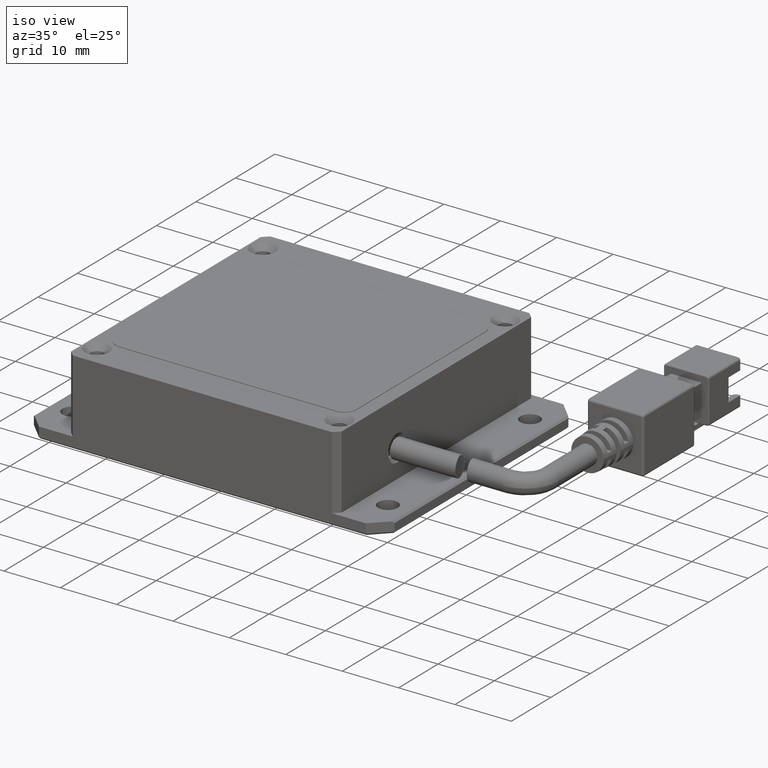
[diagram: clean part render]
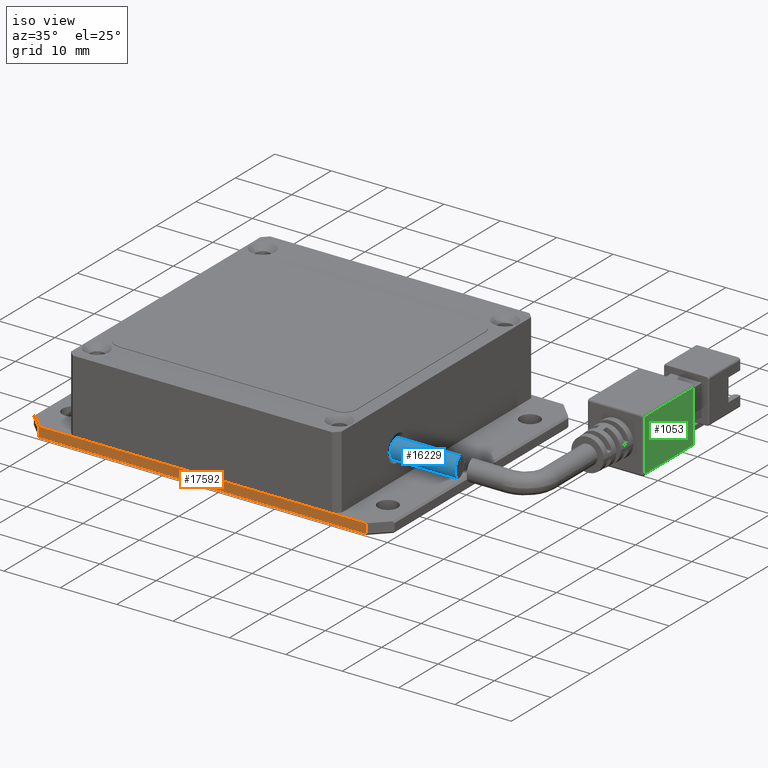
[diagram: same view with three faces highlighted in distinct colors, each labeled with its STEP entity id]
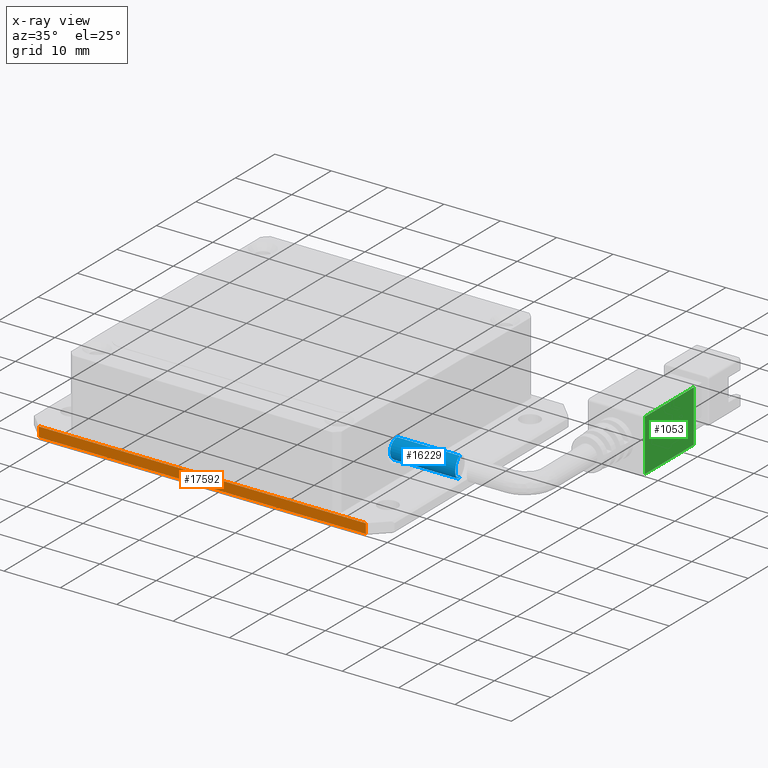
[diagram: x-ray of the same camera — body ghosted, the three highlighted faces saturated]
A machine part, iso view with three faces highlighted in distinct colors.
The next image is the same camera in x-ray (body ghosted, the three faces saturated) — at least one of them is partly hidden behind the body in this view.
Their STEP definitions:

[orange] entity #17592 — the highlighted planar face has unit normal (0, 1, 0).
#899 = CARTESIAN_POINT ( 'NONE',  ( 31.09316533027871900, -22.70904925544097000, -2.000000000016308300 ) ) ;
#1716 = VERTEX_POINT ( 'NONE', #15569 ) ;
#1923 = ORIENTED_EDGE ( 'NONE', *, *, #12071, .F. ) ;
#2121 = DIRECTION ( 'NONE',  ( 1.000000000000000000, 0.0000000000000000000, 0.0000000000000000000 ) ) ;
#2465 = DIRECTION ( 'NONE',  ( 0.0000000000000000000, 0.0000000000000000000, -1.000000000000000000 ) ) ;
#4229 = VECTOR ( 'NONE', #15873, 1000.000000000000000 ) ;
#6106 = AXIS2_PLACEMENT_3D ( 'NONE', #899, #11967, #2465 ) ;
#7556 = VECTOR ( 'NONE', #17646, 1000.000000000000000 ) ;
#8067 = EDGE_CURVE ( 'NONE', #1716, #10074, #11140, .T. ) ;
#8139 = LINE ( 'NONE', #14999, #16552 ) ;
#8174 = EDGE_CURVE ( 'NONE', #10074, #8392, #8139, .T. ) ;
#8392 = VERTEX_POINT ( 'NONE', #9277 ) ;
#8426 = CARTESIAN_POINT ( 'NONE',  ( 31.09316533027871900, -22.70904925544097000, -1.630813539765796300E-011 ) ) ;
#8479 = CARTESIAN_POINT ( 'NONE',  ( -29.90683466972126300, -22.70904925544097000, -1.700000000016290900 ) ) ;
#8928 = LINE ( 'NONE', #9538, #4229 ) ;
#9277 = CARTESIAN_POINT ( 'NONE',  ( 28.09316533027870500, -22.70904925544097700, -1.700000000016285600 ) ) ;
#9538 = CARTESIAN_POINT ( 'NONE',  ( -29.90683466972125600, -22.70904925544097000, -2.000000000016308300 ) ) ;
#10074 = VERTEX_POINT ( 'NONE', #20197 ) ;
#11140 = LINE ( 'NONE', #8426, #15333 ) ;
#11967 = DIRECTION ( 'NONE',  ( 0.0000000000000000000, 1.000000000000000000, 0.0000000000000000000 ) ) ;
#12071 = EDGE_CURVE ( 'NONE', #16082, #1716, #8928, .T. ) ;
#13681 = ORIENTED_EDGE ( 'NONE', *, *, #8174, .F. ) ;
#14231 = ORIENTED_EDGE ( 'NONE', *, *, #8067, .F. ) ;
#14298 = EDGE_CURVE ( 'NONE', #8392, #16082, #15471, .T. ) ;
#14999 = CARTESIAN_POINT ( 'NONE',  ( 28.09316533027870500, -22.70904925544097000, -2.000000000016308300 ) ) ;
#15031 = EDGE_LOOP ( 'NONE', ( #17705, #13681, #14231, #1923 ) ) ;
#15071 = PLANE ( 'NONE',  #6106 ) ;
#15333 = VECTOR ( 'NONE', #2121, 1000.000000000000000 ) ;
#15471 = LINE ( 'NONE', #16053, #7556 ) ;
#15569 = CARTESIAN_POINT ( 'NONE',  ( -29.90683466972125600, -22.70904925544097000, -1.630661751461648400E-011 ) ) ;
#15873 = DIRECTION ( 'NONE',  ( -0.0000000000000000000, -0.0000000000000000000, 1.000000000000000000 ) ) ;
#16053 = CARTESIAN_POINT ( 'NONE',  ( 31.09316533027871900, -22.70904925544097000, -1.700000000016287600 ) ) ;
#16082 = VERTEX_POINT ( 'NONE', #8479 ) ;
#16552 = VECTOR ( 'NONE', #18163, 1000.000000000000000 ) ;
#17592 = ADVANCED_FACE ( 'NONE', ( #20347 ), #15071, .F. ) ;
#17646 = DIRECTION ( 'NONE',  ( -1.000000000000000000, 0.0000000000000000000, 0.0000000000000000000 ) ) ;
#17705 = ORIENTED_EDGE ( 'NONE', *, *, #14298, .F. ) ;
#18163 = DIRECTION ( 'NONE',  ( 0.0000000000000000000, 0.0000000000000000000, -1.000000000000000000 ) ) ;
#20197 = CARTESIAN_POINT ( 'NONE',  ( 28.09316533027870800, -22.70904925544097000, -1.630813539765796300E-011 ) ) ;
#20347 = FACE_OUTER_BOUND ( 'NONE', #15031, .T. ) ;

[blue] entity #16229 — the highlighted cylindrical surface (edge-blend (fillet) strip) has radius 1.75 mm, axis along (-1, -0, 0).
#519 = CARTESIAN_POINT ( 'NONE',  ( 43.09316533027873700, -7.709049255440968200, 6.749999999983692200 ) ) ;
#727 = CARTESIAN_POINT ( 'NONE',  ( 23.09316533027874000, -7.709049255440968200, 6.749999999983692200 ) ) ;
#776 = CARTESIAN_POINT ( 'NONE',  ( 34.42856060406452900, -8.475306284021415900, 3.422582838820881900 ) ) ;
#780 = ORIENTED_EDGE ( 'NONE', *, *, #6441, .T. ) ;
#842 = CARTESIAN_POINT ( 'NONE',  ( 34.64020736969350600, -9.367897425893252400, 5.569322719982777900 ) ) ;
#1141 = CARTESIAN_POINT ( 'NONE',  ( 23.09316533027874000, -7.709049255440968200, 3.249999999983691700 ) ) ;
#2204 = AXIS2_PLACEMENT_3D ( 'NONE', #19900, #10432, #16792 ) ;
#2224 = AXIS2_PLACEMENT_3D ( 'NONE', #15554, #6063, #17132 ) ;
#2269 = CARTESIAN_POINT ( 'NONE',  ( 34.23941991828349500, -7.709049255440967300, 3.249999999983691700 ) ) ;
#2324 = VERTEX_POINT ( 'NONE', #10290 ) ;
#2344 = CARTESIAN_POINT ( 'NONE',  ( 34.49970302478727300, -8.764795848950356600, 3.599728623663661900 ) ) ;
#2421 = CARTESIAN_POINT ( 'NONE',  ( 34.60769107911598000, -9.222475451182695800, 5.886129147123134500 ) ) ;
#2954 = DIRECTION ( 'NONE',  ( -1.000000000000000000, -3.081487911019577400E-033, 2.465190328815661900E-031 ) ) ;
#3961 = CARTESIAN_POINT ( 'NONE',  ( 34.56040030083728700, -9.018198552341244700, 3.833079704190962100 ) ) ;
#3970 = EDGE_CURVE ( 'NONE', #2324, #18210, #16618, .T. ) ;
#4027 = CARTESIAN_POINT ( 'NONE',  ( 34.56093870887545400, -9.020474812607666600, 6.164484419326620400 ) ) ;
#5548 = CARTESIAN_POINT ( 'NONE',  ( 34.60736566569221400, -9.221039826487615400, 4.111368324109072600 ) ) ;
#5622 = CARTESIAN_POINT ( 'NONE',  ( 34.50027293188721700, -8.767141242688218500, 6.398500294470815100 ) ) ;
#6063 = DIRECTION ( 'NONE',  ( 1.000000000000000000, 3.081487911019577400E-033, -2.465190328815661900E-031 ) ) ;
#6090 = VECTOR ( 'NONE', #11598, 1000.000000000000000 ) ;
#6191 = CARTESIAN_POINT ( 'NONE',  ( 34.23941991828349500, -7.709049255440968200, 6.749999999983692200 ) ) ;
#6441 = EDGE_CURVE ( 'NONE', #6817, #18210, #17342, .T. ) ;
#6817 = VERTEX_POINT ( 'NONE', #727 ) ;
#7162 = CARTESIAN_POINT ( 'NONE',  ( 34.64986748201158000, -9.411282725181825600, 4.533076718571429400 ) ) ;
#7229 = CARTESIAN_POINT ( 'NONE',  ( 34.42873214433576800, -8.475998781282113400, 6.577068706638403500 ) ) ;
#7392 = VERTEX_POINT ( 'NONE', #6191 ) ;
#8651 = CARTESIAN_POINT ( 'NONE',  ( 34.29449603690850500, -7.935041597999716400, 3.261020609549650100 ) ) ;
#8712 = CARTESIAN_POINT ( 'NONE',  ( 34.66003263948368800, -9.459177063560549200, 5.113738040289639700 ) ) ;
#8787 = CARTESIAN_POINT ( 'NONE',  ( 34.29447871569624300, -7.936980781243422100, 6.749999999983696600 ) ) ;
#8880 = ORIENTED_EDGE ( 'NONE', *, *, #3970, .F. ) ;
#9444 = FACE_OUTER_BOUND ( 'NONE', #17433, .T. ) ;
#10245 = CARTESIAN_POINT ( 'NONE',  ( 34.37633946853516400, -8.265026321970314200, 3.336784970087286700 ) ) ;
#10290 = CARTESIAN_POINT ( 'NONE',  ( 34.23941991828349500, -7.709049255440967300, 3.249999999983691700 ) ) ;
#10320 = CARTESIAN_POINT ( 'NONE',  ( 34.64760298720358400, -9.401784739550331300, 5.458970932065691200 ) ) ;
#10415 = B_SPLINE_CURVE_WITH_KNOTS ( 'NONE', 3,
 ( #2269, #16538, #8651, #19728, #10245, #776, #11847, #2344, #13421, #3961, #15016, #5548, #16607, #7162, #18185, #8712, #19797, #10320, #842, #11926, #2421, #13494, #4027, #15087, #5622, #16672, #7229, #18253, #8787, #19859 ),
 .UNSPECIFIED., .F., .F.,
 ( 4, 2, 2, 2, 2, 2, 2, 2, 2, 2, 2, 2, 2, 2, 4 ),
 ( 1.728500114022708000E-014, 0.0003467692703522315100, 0.0006935385406871780300, 0.001040307811022124500, 0.001387077081357071100, 0.001733846351692017800, 0.002080615622026963900, 0.002774154162696860800, 0.003120923433031809500, 0.003467692703366757300, 0.003814461973701706000, 0.004161231244036654200, 0.004508000514371602500, 0.004854769784706550700, 0.005548308325376451500 ),
 .UNSPECIFIED. ) ;
#10432 = DIRECTION ( 'NONE',  ( -1.000000000000000000, -3.081487911019577400E-033, 2.465190328815661900E-031 ) ) ;
#11598 = DIRECTION ( 'NONE',  ( -1.000000000000000000, -3.081487911019577400E-033, 2.465190328815661900E-031 ) ) ;
#11847 = CARTESIAN_POINT ( 'NONE',  ( 34.45328980764789200, -8.575240878343995700, 3.475181037135812300 ) ) ;
#11926 = CARTESIAN_POINT ( 'NONE',  ( 34.62029946968888100, -9.278431874635691300, 5.782907278458969500 ) ) ;
#11939 = VECTOR ( 'NONE', #2954, 1000.000000000000000 ) ;
#12422 = CARTESIAN_POINT ( 'NONE',  ( 43.09316533027873700, -7.709049255440968200, 3.249999999983692200 ) ) ;
#13415 = EDGE_CURVE ( 'NONE', #7392, #6817, #18194, .T. ) ;
#13421 = CARTESIAN_POINT ( 'NONE',  ( 34.52157531494713500, -8.855222336051255600, 3.672648453635925800 ) ) ;
#13434 = ORIENTED_EDGE ( 'NONE', *, *, #13415, .T. ) ;
#13494 = CARTESIAN_POINT ( 'NONE',  ( 34.57806024271008700, -9.093718713517471700, 6.076277941427007600 ) ) ;
#13977 = ORIENTED_EDGE ( 'NONE', *, *, #18604, .T. ) ;
#15016 = CARTESIAN_POINT ( 'NONE',  ( 34.57753194988943300, -9.091445301735527500, 3.920758176530361200 ) ) ;
#15087 = CARTESIAN_POINT ( 'NONE',  ( 34.52174498554524000, -8.855918677427176500, 6.326857748122291600 ) ) ;
#15554 = CARTESIAN_POINT ( 'NONE',  ( 23.09316533027874000, -7.709049255440968200, 4.999999999983692200 ) ) ;
#15850 = CYLINDRICAL_SURFACE ( 'NONE', #2204, 1.749999999999999800 ) ;
#16229 = ADVANCED_FACE ( 'NONE', ( #9444 ), #15850, .T. ) ;
#16538 = CARTESIAN_POINT ( 'NONE',  ( 34.26694792122454900, -7.823009240175126800, 3.249999999984801900 ) ) ;
#16607 = CARTESIAN_POINT ( 'NONE',  ( 34.61999699716406600, -9.277086367278601000, 4.214481922561160100 ) ) ;
#16618 = LINE ( 'NONE', #12422, #11939 ) ;
#16672 = CARTESIAN_POINT ( 'NONE',  ( 34.45391777090151200, -8.577788129586061000, 6.523369454747216500 ) ) ;
#16792 = DIRECTION ( 'NONE',  ( 0.0000000000000000000, 0.0000000000000000000, 1.000000000000000000 ) ) ;
#17132 = DIRECTION ( 'NONE',  ( 0.0000000000000000000, 0.0000000000000000000, 1.000000000000000000 ) ) ;
#17342 = CIRCLE ( 'NONE', #2224, 1.749999999999999800 ) ;
#17433 = EDGE_LOOP ( 'NONE', ( #8880, #13977, #13434, #780 ) ) ;
#18185 = CARTESIAN_POINT ( 'NONE',  ( 34.65994941824069300, -9.458790380676692400, 4.766674602902526200 ) ) ;
#18194 = LINE ( 'NONE', #519, #6090 ) ;
#18210 = VERTEX_POINT ( 'NONE', #1141 ) ;
#18253 = CARTESIAN_POINT ( 'NONE',  ( 34.35053269826448700, -8.161106165656571300, 6.705747247589895800 ) ) ;
#18604 = EDGE_CURVE ( 'NONE', #2324, #7392, #10415, .T. ) ;
#19728 = CARTESIAN_POINT ( 'NONE',  ( 34.34906705146954700, -8.155549060507681200, 3.304193471123476400 ) ) ;
#19797 = CARTESIAN_POINT ( 'NONE',  ( 34.65755491263965400, -9.447613633495629800, 5.231087946485898100 ) ) ;
#19859 = CARTESIAN_POINT ( 'NONE',  ( 34.23941991828349500, -7.709049255440968200, 6.749999999983692200 ) ) ;
#19900 = CARTESIAN_POINT ( 'NONE',  ( 43.09316533027873700, -7.709049255440968200, 4.999999999983692200 ) ) ;

[green] entity #1053 — the highlighted planar face has unit normal (-1, -0, -0).
#234 = ORIENTED_EDGE ( 'NONE', *, *, #12725, .F. ) ;
#638 = LINE ( 'NONE', #18467, #8543 ) ;
#1053 = ADVANCED_FACE ( 'NONE', ( #10486 ), #5897, .F. ) ;
#1120 = DIRECTION ( 'NONE',  ( -3.081487911019577400E-033, 1.000000000000000000, -2.672764710092188000E-049 ) ) ;
#1808 = DIRECTION ( 'NONE',  ( -8.673617379884010800E-017, -0.0000000000000000000, 1.000000000000000000 ) ) ;
#2687 = AXIS2_PLACEMENT_3D ( 'NONE', #20085, #9025, #10545 ) ;
#2886 = VERTEX_POINT ( 'NONE', #13511 ) ;
#3423 = CARTESIAN_POINT ( 'NONE',  ( 52.09316533027873000, 13.69095074455903200, 9.999999999983700100 ) ) ;
#4782 = CARTESIAN_POINT ( 'NONE',  ( 52.09316533027873000, 26.29095074455903400, 0.3999999999836990100 ) ) ;
#5613 = EDGE_LOOP ( 'NONE', ( #11090, #6614, #13225, #234 ) ) ;
#5670 = VERTEX_POINT ( 'NONE', #16738 ) ;
#5897 = PLANE ( 'NONE',  #2687 ) ;
#6375 = DIRECTION ( 'NONE',  ( 3.081487911019577400E-033, -1.000000000000000000, 2.672764710092188000E-049 ) ) ;
#6614 = ORIENTED_EDGE ( 'NONE', *, *, #7683, .F. ) ;
#6735 = LINE ( 'NONE', #3423, #19338 ) ;
#7126 = VERTEX_POINT ( 'NONE', #8043 ) ;
#7683 = EDGE_CURVE ( 'NONE', #18329, #2886, #638, .T. ) ;
#8043 = CARTESIAN_POINT ( 'NONE',  ( 52.09316533027873000, 13.69095074455903200, 0.3999999999836990100 ) ) ;
#8543 = VECTOR ( 'NONE', #1120, 1000.000000000000000 ) ;
#9025 = DIRECTION ( 'NONE',  ( -1.000000000000000000, -3.081487911019577400E-033, -8.673617379884010800E-017 ) ) ;
#9124 = LINE ( 'NONE', #4782, #17026 ) ;
#10486 = FACE_OUTER_BOUND ( 'NONE', #5613, .T. ) ;
#10545 = DIRECTION ( 'NONE',  ( -8.673617379884010800E-017, 0.0000000000000000000, 1.000000000000000000 ) ) ;
#10732 = EDGE_CURVE ( 'NONE', #7126, #18329, #6735, .T. ) ;
#11090 = ORIENTED_EDGE ( 'NONE', *, *, #13256, .F. ) ;
#12469 = CARTESIAN_POINT ( 'NONE',  ( 52.09316533027873000, 13.69095074455903200, 9.599999999983701600 ) ) ;
#12725 = EDGE_CURVE ( 'NONE', #5670, #7126, #9124, .T. ) ;
#13225 = ORIENTED_EDGE ( 'NONE', *, *, #10732, .F. ) ;
#13256 = EDGE_CURVE ( 'NONE', #2886, #5670, #18963, .T. ) ;
#13511 = CARTESIAN_POINT ( 'NONE',  ( 52.09316533027873000, 26.09095074455903400, 9.599999999983701600 ) ) ;
#14755 = VECTOR ( 'NONE', #20537, 1000.000000000000000 ) ;
#16738 = CARTESIAN_POINT ( 'NONE',  ( 52.09316533027873000, 26.09095074455903400, 0.3999999999836990100 ) ) ;
#17026 = VECTOR ( 'NONE', #6375, 1000.000000000000000 ) ;
#18329 = VERTEX_POINT ( 'NONE', #12469 ) ;
#18467 = CARTESIAN_POINT ( 'NONE',  ( 52.09316533027873000, 26.29095074455903400, 9.599999999983701600 ) ) ;
#18926 = CARTESIAN_POINT ( 'NONE',  ( 52.09316533027873000, 26.09095074455903400, -1.629946178027807900E-011 ) ) ;
#18963 = LINE ( 'NONE', #18926, #14755 ) ;
#19338 = VECTOR ( 'NONE', #1808, 1000.000000000000000 ) ;
#20085 = CARTESIAN_POINT ( 'NONE',  ( 52.09316533027873000, 26.29095074455903400, 9.999999999983700100 ) ) ;
#20537 = DIRECTION ( 'NONE',  ( 8.673617379884010800E-017, -0.0000000000000000000, -1.000000000000000000 ) ) ;